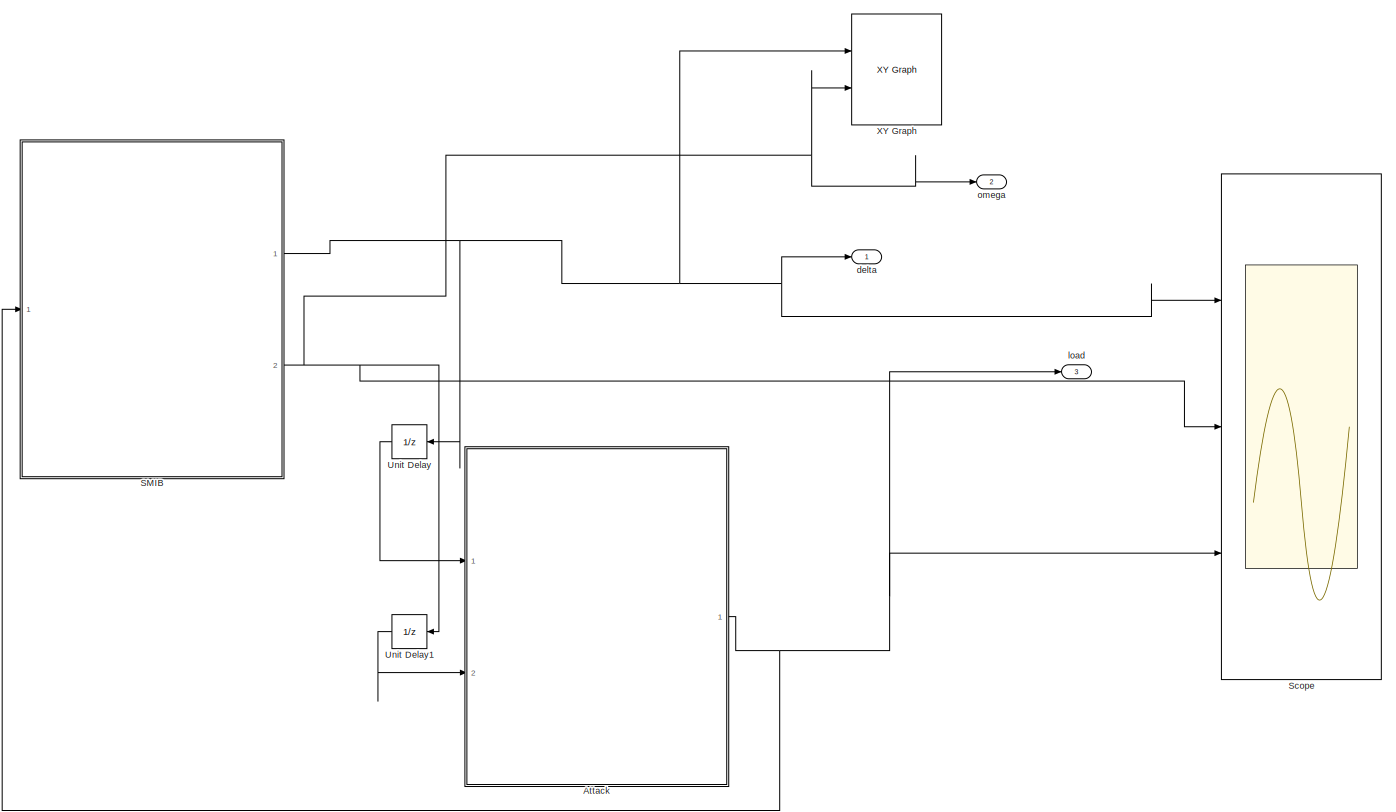
[diagram: root canvas - part 1/1, most of the canvas]
MODEL smib_attack_v2_resilient
KIND model
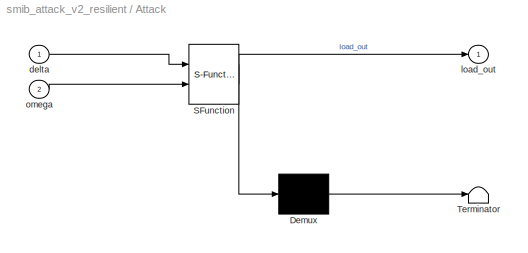
BLOCK [SubSystem] Attack
  ErrorFcn = Stateflow.Translate.translate
  PermitHierarchicalResolution = ExplicitOnly
  Ports = [2, 1]
  RequestExecContextInheritance = off
  SFBlockType = Chart
  SID = 18
  TreatAsAtomicUnit = on
BLOCK [Demux] Attack/ Demux 
  Outputs = 1
  Ports = [1, 1]
  SID = 18::72
BLOCK [S-Function] Attack/ SFunction 
  EnableBusSupport = off
  FunctionName = sf_sfun
  PortCounts = [2 2]
  Ports = [2, 2]
  SFcnIsStateOwnerBlock = off
  SFunctionDeploymentMode = off
  SID = 18::71
  Tag = Stateflow S-Function smib_attack_v2_resilient 2
BLOCK [Terminator] Attack/ Terminator 
  SID = 18::73
BLOCK [Inport] Attack/delta
  IconDisplay = Port number
  SID = 18::69
BLOCK [Outport] Attack/load_out
  IconDisplay = Port number
  SID = 18::67
BLOCK [Inport] Attack/omega
  IconDisplay = Port number
  Port = 2
  SID = 18::70
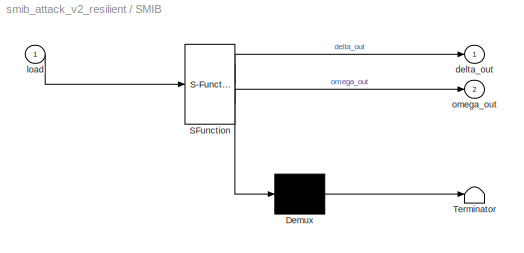
BLOCK [SubSystem] SMIB
  ErrorFcn = Stateflow.Translate.translate
  PermitHierarchicalResolution = ExplicitOnly
  Ports = [1, 2]
  RequestExecContextInheritance = off
  SFBlockType = Chart
  SID = 1
  TreatAsAtomicUnit = on
BLOCK [Demux] SMIB/ Demux 
  Outputs = 1
  Ports = [1, 1]
  SID = 1::71
BLOCK [S-Function] SMIB/ SFunction 
  EnableBusSupport = off
  FunctionName = sf_sfun
  Parameters = delta0,omega0,theta
  PortCounts = [1 3]
  Ports = [1, 3]
  SFcnIsStateOwnerBlock = off
  SFunctionDeploymentMode = off
  SID = 1::70
  Tag = Stateflow S-Function smib_attack_v2_resilient 1
BLOCK [Terminator] SMIB/ Terminator 
  SID = 1::72
BLOCK [Outport] SMIB/delta_out
  IconDisplay = Port number
  SID = 1::41
BLOCK [Inport] SMIB/load
  IconDisplay = Port number
  SID = 1::69
BLOCK [Outport] SMIB/omega_out
  IconDisplay = Port number
  Port = 2
  SID = 1::42
BLOCK [Scope] Scope
  Floating = off
  NumInputPorts = 3
  Ports = [3]
  SID = 27
  ScopeSpecificationString = Simulink.scopes.TimeScopeBlockCfg('CurrentConfiguration', extmgr.ConfigurationSet(extmgr.Configuration('Core','General UI',true,'FigureColor',[1 1 1]),extmgr.Configuration('Core','Source UI',true),extmgr.Configuration('Sources','WiredSimulink',true,'DataLogging',true,'DataLoggingSaveFormat','StructureWithTime','DataLoggingDecimation','1','DataLoggingDecimateData',true),extmgr.Configuration('Visual...<+4810ch>
BLOCK [UnitDelay] Unit Delay
  InputProcessing = Elements as channels (sample based)
  SID = 25
  SampleTime = 1/100
BLOCK [UnitDelay] Unit Delay1
  InputProcessing = Elements as channels (sample based)
  SID = 26
  SampleTime = 1/100
BLOCK [Reference] XY Graph  REF=simulink/Sinks/XY Graph
  Ports = [2]
  SID = 14
  SourceBlock = simulink/Sinks/XY Graph
  SourceProductBaseCode = SL
  SourceProductName = Simulink
  SourceType = XY scope.
  st = -1
  xmax = 5
  xmin = -1
  ymax = 5
  ymin = -2
BLOCK [Outport] delta
  IconDisplay = Port number
  SID = 15
BLOCK [Outport] load
  IconDisplay = Port number
  Port = 3
  SID = 17
BLOCK [Outport] omega
  IconDisplay = Port number
  Port = 2
  SID = 16
LINE Attack/ Demux :1 -> Attack/ Terminator :1
LINE Attack/ SFunction :1 -> Attack/ Demux :1
LINE Attack/ SFunction :2 -> Attack/load_out:1
LINE Attack/delta:1 -> Attack/ SFunction :1
LINE Attack/omega:1 -> Attack/ SFunction :2
NET Attack:1 -> SMIB:1, Scope:3, load:1
LINE SMIB/ Demux :1 -> SMIB/ Terminator :1
LINE SMIB/ SFunction :1 -> SMIB/ Demux :1
LINE SMIB/ SFunction :2 -> SMIB/delta_out:1
LINE SMIB/ SFunction :3 -> SMIB/omega_out:1
LINE SMIB/load:1 -> SMIB/ SFunction :1
NET SMIB:1 -> Scope:1, Unit Delay:1, XY Graph:1, delta:1
NET SMIB:2 -> Scope:2, Unit Delay1:1, XY Graph:2, omega:1
LINE Unit Delay1:1 -> Attack:2
LINE Unit Delay:1 -> Attack:1
note: NET lines group one-source signal fan-out (src -> all destinations, sorted); 1:1 wires keep LINE
CHART SMIB states=2 transitions=3
  STATE_LABEL 'Plant_1\\ndu:\\ndelta_dot = omega;\\nomega_dot = 9 -10*sin(delta) - omega;\\ndelta_out = delta;\\nomega_out = omega;\\n\\nclock_dot = 1;'
  STATE_LABEL 'Plant_2\\ndu:\\ndelta_dot = omega;\\nomega_dot = -10*sin(delta) - omega;\\ndelta_out = delta;\\nomega_out = omega;<path> = 1;'
CHART Attack states=2 transitions=4
  STATE_LABEL 'Mode1\\ndu:\\nt_dot = 1;\\n\\n'
  STATE_LABEL 'Mode2\\ndu:\\nt_dot = 1;\\n\\n'
note: 1 file-system path scrubbed to <path> (not preserved elsewhere — flat text is the only slx artifact)
